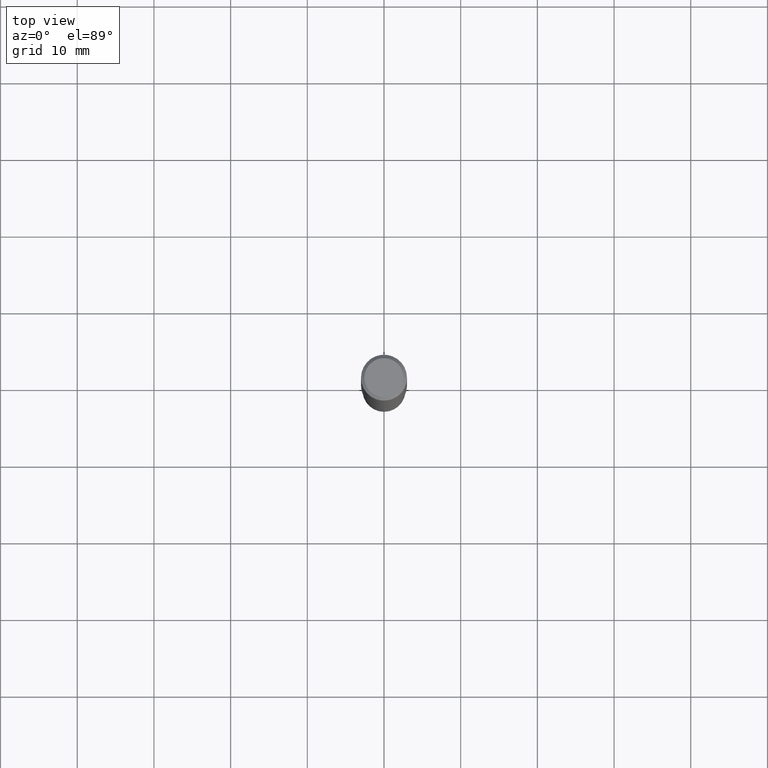
[diagram: clean part render]
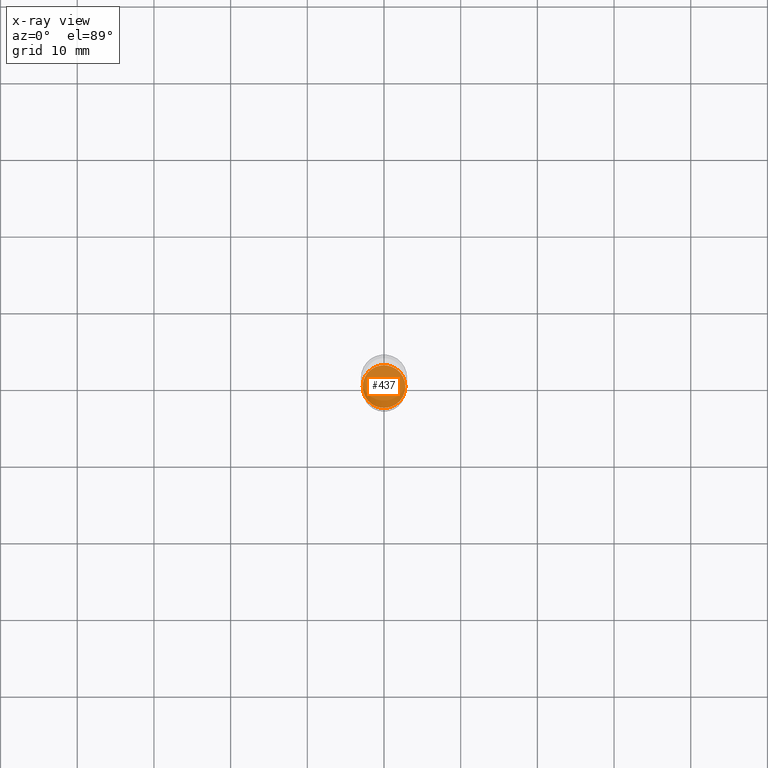
[diagram: x-ray — body ghosted, one internal face saturated and labeled with its STEP entity id]
A machine part, top view, then the same camera in x-ray: the body is ghosted and one INTERNAL B-rep face — a face not visible from any outside direction — is saturated and labeled: STEP entity #437.
In plain terms, the highlighted planar face has unit normal (-0, 0, 1).
Its self-contained STEP definition (entity closure, byte-faithful):
#18 = EDGE_CURVE ( 'NONE', #115, #141, #454, .T. ) ;
#30 = CARTESIAN_POINT ( 'NONE',  ( 6.498099711795145856E-29, -9.277564213574007753E-15, -2.657200000000000450 ) ) ;
#35 = ORIENTED_EDGE ( 'NONE', *, *, #265, .F. ) ;
#88 = DIRECTION ( 'NONE',  ( -2.445468806185136597E-29, 3.491481338843145583E-15, 1.000000000000000000 ) ) ;
#96 = CARTESIAN_POINT ( 'NONE',  ( 6.498099711795145856E-29, -9.277564213574007753E-15, -2.657200000000000450 ) ) ;
#109 = PLANE ( 'NONE',  #266 ) ;
#115 = VERTEX_POINT ( 'NONE', #205 ) ;
#132 = ORIENTED_EDGE ( 'NONE', *, *, #18, .F. ) ;
#141 = VERTEX_POINT ( 'NONE', #380 ) ;
#201 = FACE_OUTER_BOUND ( 'NONE', #270, .T. ) ;
#205 = CARTESIAN_POINT ( 'NONE',  ( -0.1097500000000000003, -8.495094333903187286E-15, -2.657200000000000450 ) ) ;
#248 = AXIS2_PLACEMENT_3D ( 'NONE', #355, #316, #465 ) ;
#265 = EDGE_CURVE ( 'NONE', #141, #115, #318, .T. ) ;
#266 = AXIS2_PLACEMENT_3D ( 'NONE', #30, #383, #449 ) ;
#270 = EDGE_LOOP ( 'NONE', ( #35, #132 ) ) ;
#316 = DIRECTION ( 'NONE',  ( -2.445468806185136597E-29, 3.491481338843145583E-15, 1.000000000000000000 ) ) ;
#318 = CIRCLE ( 'NONE', #339, 0.1097500000000000003 ) ;
#339 = AXIS2_PLACEMENT_3D ( 'NONE', #96, #88, #373 ) ;
#355 = CARTESIAN_POINT ( 'NONE',  ( 6.498099711795145856E-29, -9.277564213574007753E-15, -2.657200000000000450 ) ) ;
#373 = DIRECTION ( 'NONE',  ( 1.000000000000000000, -6.982962677686273021E-15, 0.000000000000000000 ) ) ;
#380 = CARTESIAN_POINT ( 'NONE',  ( 0.1097500000000000003, -1.004394436745007543E-14, -2.657200000000000450 ) ) ;
#383 = DIRECTION ( 'NONE',  ( -2.438088387897960049E-29, 3.491481338843145188E-15, 1.000000000000000000 ) ) ;
#437 = ADVANCED_FACE ( 'NONE', ( #201 ), #109, .F. ) ;
#449 = DIRECTION ( 'NONE',  ( 1.000000000000000000, -6.982962677686265922E-15, 4.876176775795935793E-29 ) ) ;
#454 = CIRCLE ( 'NONE', #248, 0.1097500000000000003 ) ;
#465 = DIRECTION ( 'NONE',  ( 1.000000000000000000, -6.982962677686273021E-15, 0.000000000000000000 ) ) ;